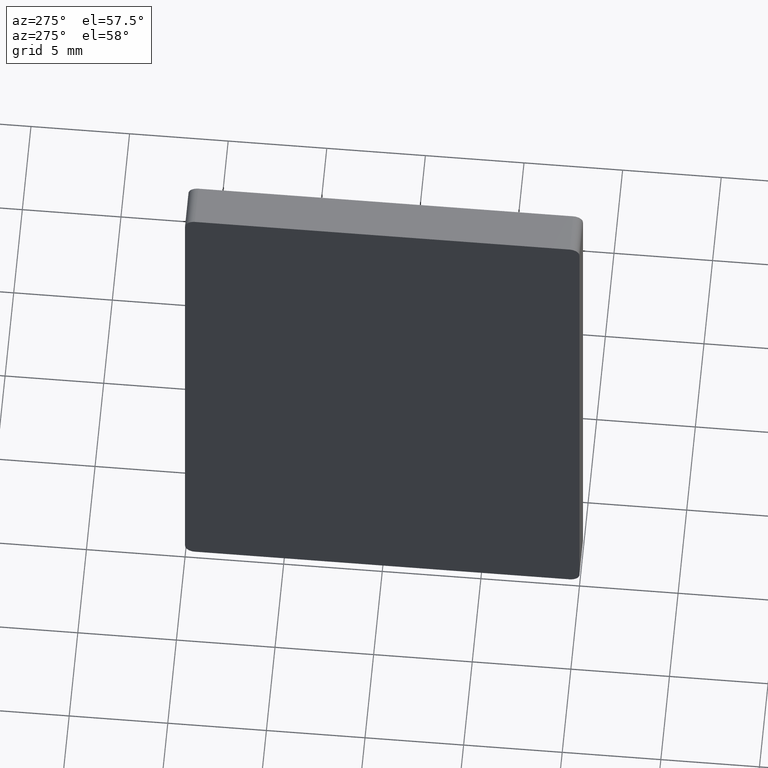
[diagram: clean part render]
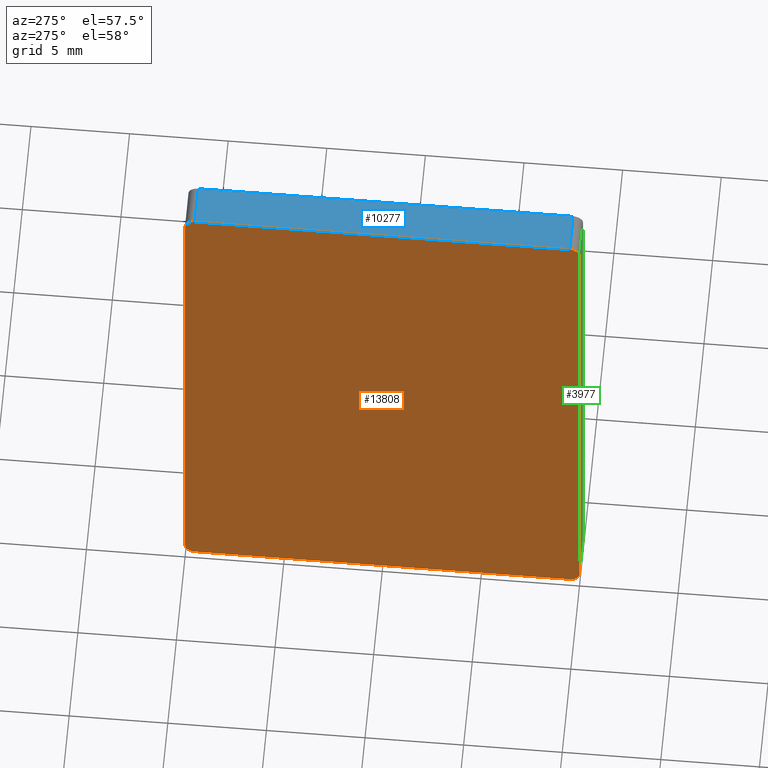
[diagram: same view with three faces highlighted in distinct colors, each labeled with its STEP entity id]
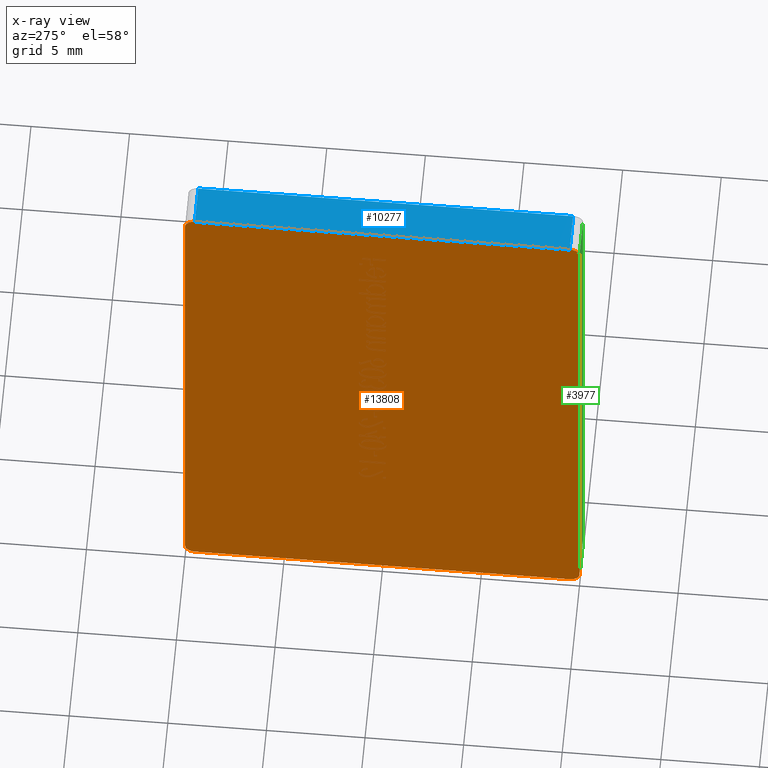
[diagram: x-ray of the same camera — body ghosted, the three highlighted faces saturated]
A machine part, auxiliary view with three faces highlighted in distinct colors.
The next image is the same camera in x-ray (body ghosted, the three faces saturated) — at least one of them is partly hidden behind the body in this view.
Their STEP definitions:

[orange] entity #13808 — the highlighted planar face has unit normal (-1, -0, 0).
#50 = LINE ( 'NONE', #14757, #8183 ) ;
#121 = EDGE_CURVE ( 'NONE', #8858, #3459, #12372, .T. ) ;
#184 = EDGE_CURVE ( 'NONE', #9326, #10818, #12916, .T. ) ;
#900 = AXIS2_PLACEMENT_3D ( 'NONE', #4019, #14399, #5224 ) ;
#934 = LINE ( 'NONE', #14873, #12869 ) ;
#1331 = LINE ( 'NONE', #8719, #1891 ) ;
#1506 = PLANE ( 'NONE',  #5491 ) ;
#1606 = DIRECTION ( 'NONE',  ( 1.000000000000000000, 0.000000000000000000, -0.000000000000000000 ) ) ;
#1618 = DIRECTION ( 'NONE',  ( 1.000000000000000000, 0.000000000000000000, 0.000000000000000000 ) ) ;
#1819 = ORIENTED_EDGE ( 'NONE', *, *, #7122, .F. ) ;
#1891 = VECTOR ( 'NONE', #13369, 1000.000000000000000 ) ;
#2004 = FACE_OUTER_BOUND ( 'NONE', #12771, .T. ) ;
#2090 = DIRECTION ( 'NONE',  ( 0.000000000000000000, 1.000000000000000000, 0.000000000000000000 ) ) ;
#2695 = CARTESIAN_POINT ( 'NONE',  ( 0.000000000000000000, 0.5000000000000000000, -0.5000000000000000000 ) ) ;
#2892 = DIRECTION ( 'NONE',  ( 0.000000000000000000, 0.000000000000000000, -1.000000000000000000 ) ) ;
#2953 = CARTESIAN_POINT ( 'NONE',  ( 0.000000000000000000, 0.5000000000000035527, 0.000000000000000000 ) ) ;
#3459 = VERTEX_POINT ( 'NONE', #3669 ) ;
#3669 = CARTESIAN_POINT ( 'NONE',  ( 0.000000000000000000, 20.00000000000000000, -0.5000000000000035527 ) ) ;
#3705 = DIRECTION ( 'NONE',  ( -1.000000000000000000, -0.000000000000000000, 0.000000000000000000 ) ) ;
#3739 = VERTEX_POINT ( 'NONE', #9151 ) ;
#3916 = ORIENTED_EDGE ( 'NONE', *, *, #9479, .F. ) ;
#3995 = CARTESIAN_POINT ( 'NONE',  ( 0.000000000000000000, 0.5000000000000000000, -30.50000000000000000 ) ) ;
#4017 = AXIS2_PLACEMENT_3D ( 'NONE', #4940, #8372, #14223 ) ;
#4019 = CARTESIAN_POINT ( 'NONE',  ( 0.000000000000000000, 0.5000000000000000000, -0.5000000000000000000 ) ) ;
#4458 = DIRECTION ( 'NONE',  ( -0.000000000000000000, -1.000000000000000000, -0.000000000000000000 ) ) ;
#4720 = VERTEX_POINT ( 'NONE', #2953 ) ;
#4940 = CARTESIAN_POINT ( 'NONE',  ( 0.000000000000000000, 19.50000000000000000, -0.5000000000000000000 ) ) ;
#5061 = DIRECTION ( 'NONE',  ( 0.000000000000000000, 0.000000000000000000, 1.000000000000000000 ) ) ;
#5082 = ORIENTED_EDGE ( 'NONE', *, *, #10955, .F. ) ;
#5100 = CARTESIAN_POINT ( 'NONE',  ( 0.000000000000000000, 20.00000000000000000, -30.49999999999999645 ) ) ;
#5224 = DIRECTION ( 'NONE',  ( 0.000000000000000000, 0.000000000000000000, 1.000000000000000000 ) ) ;
#5491 = AXIS2_PLACEMENT_3D ( 'NONE', #2695, #3705, #6076 ) ;
#5912 = VERTEX_POINT ( 'NONE', #14353 ) ;
#6076 = DIRECTION ( 'NONE',  ( 0.000000000000000000, 0.000000000000000000, 1.000000000000000000 ) ) ;
#6552 = CARTESIAN_POINT ( 'NONE',  ( 0.000000000000000000, 0.5000000000000035527, -31.00000000000000000 ) ) ;
#6763 = EDGE_CURVE ( 'NONE', #3459, #5912, #12406, .T. ) ;
#6952 = CARTESIAN_POINT ( 'NONE',  ( 0.000000000000000000, 0.000000000000000000, -30.49999999999999645 ) ) ;
#7098 = CARTESIAN_POINT ( 'NONE',  ( 0.000000000000000000, 0.000000000000000000, -0.5000000000000035527 ) ) ;
#7122 = EDGE_CURVE ( 'NONE', #4720, #13143, #8063, .T. ) ;
#7475 = DIRECTION ( 'NONE',  ( -0.000000000000000000, -0.000000000000000000, 1.000000000000000000 ) ) ;
#7478 = EDGE_CURVE ( 'NONE', #3739, #8858, #11489, .T. ) ;
#8063 = CIRCLE ( 'NONE', #900, 0.5000000000000000000 ) ;
#8183 = VECTOR ( 'NONE', #2090, 1000.000000000000000 ) ;
#8372 = DIRECTION ( 'NONE',  ( 1.000000000000000000, 0.000000000000000000, 0.000000000000000000 ) ) ;
#8424 = ORIENTED_EDGE ( 'NONE', *, *, #6763, .F. ) ;
#8719 = CARTESIAN_POINT ( 'NONE',  ( 0.000000000000000000, 0.000000000000000000, -0.5000000000000035527 ) ) ;
#8858 = VERTEX_POINT ( 'NONE', #5100 ) ;
#8962 = ORIENTED_EDGE ( 'NONE', *, *, #184, .F. ) ;
#9074 = ORIENTED_EDGE ( 'NONE', *, *, #121, .F. ) ;
#9151 = CARTESIAN_POINT ( 'NONE',  ( 0.000000000000000000, 19.49999999999999645, -31.00000000000000000 ) ) ;
#9326 = VERTEX_POINT ( 'NONE', #6952 ) ;
#9479 = EDGE_CURVE ( 'NONE', #13143, #9326, #1331, .T. ) ;
#9501 = AXIS2_PLACEMENT_3D ( 'NONE', #3995, #1606, #5061 ) ;
#10818 = VERTEX_POINT ( 'NONE', #6552 ) ;
#10827 = CARTESIAN_POINT ( 'NONE',  ( 0.000000000000000000, 19.50000000000000000, -30.50000000000000000 ) ) ;
#10955 = EDGE_CURVE ( 'NONE', #10818, #3739, #50, .T. ) ;
#11489 = CIRCLE ( 'NONE', #14264, 0.5000000000000004441 ) ;
#11819 = CARTESIAN_POINT ( 'NONE',  ( 0.000000000000000000, 20.00000000000000000, -0.5000000000000035527 ) ) ;
#12361 = ORIENTED_EDGE ( 'NONE', *, *, #14520, .F. ) ;
#12372 = LINE ( 'NONE', #11819, #13637 ) ;
#12384 = ORIENTED_EDGE ( 'NONE', *, *, #7478, .F. ) ;
#12406 = CIRCLE ( 'NONE', #4017, 0.5000000000000002220 ) ;
#12771 = EDGE_LOOP ( 'NONE', ( #1819, #12361, #8424, #9074, #12384, #5082, #8962, #3916 ) ) ;
#12869 = VECTOR ( 'NONE', #4458, 1000.000000000000000 ) ;
#12916 = CIRCLE ( 'NONE', #9501, 0.5000000000000004441 ) ;
#13143 = VERTEX_POINT ( 'NONE', #7098 ) ;
#13369 = DIRECTION ( 'NONE',  ( 0.000000000000000000, 0.000000000000000000, -1.000000000000000000 ) ) ;
#13637 = VECTOR ( 'NONE', #7475, 1000.000000000000000 ) ;
#13808 = ADVANCED_FACE ( 'NONE', ( #2004 ), #1506, .T. ) ;
#14223 = DIRECTION ( 'NONE',  ( 0.000000000000000000, 0.000000000000000000, -1.000000000000000000 ) ) ;
#14264 = AXIS2_PLACEMENT_3D ( 'NONE', #10827, #1618, #2892 ) ;
#14353 = CARTESIAN_POINT ( 'NONE',  ( 0.000000000000000000, 19.49999999999999645, 2.168404344971008868E-16 ) ) ;
#14399 = DIRECTION ( 'NONE',  ( 1.000000000000000000, 0.000000000000000000, -0.000000000000000000 ) ) ;
#14520 = EDGE_CURVE ( 'NONE', #5912, #4720, #934, .T. ) ;
#14757 = CARTESIAN_POINT ( 'NONE',  ( 0.000000000000000000, 0.5000000000000035527, -31.00000000000000000 ) ) ;
#14873 = CARTESIAN_POINT ( 'NONE',  ( 0.000000000000000000, 0.5000000000000035527, 0.000000000000000000 ) ) ;

[blue] entity #10277 — the highlighted planar face has unit normal (0, 0, -1).
#117 = DIRECTION ( 'NONE',  ( -0.000000000000000000, -1.000000000000000000, -0.000000000000000000 ) ) ;
#138 = VECTOR ( 'NONE', #1469, 1000.000000000000000 ) ;
#305 = DIRECTION ( 'NONE',  ( -1.000000000000000000, 0.000000000000000000, -0.000000000000000000 ) ) ;
#534 = FACE_OUTER_BOUND ( 'NONE', #5183, .T. ) ;
#934 = LINE ( 'NONE', #14873, #12869 ) ;
#1458 = DIRECTION ( 'NONE',  ( 0.000000000000000000, 0.000000000000000000, -1.000000000000000000 ) ) ;
#1469 = DIRECTION ( 'NONE',  ( -1.000000000000000000, -0.000000000000000000, -0.000000000000000000 ) ) ;
#1821 = VERTEX_POINT ( 'NONE', #2603 ) ;
#2336 = CARTESIAN_POINT ( 'NONE',  ( 2.000000000000000000, 0.5000000000000035527, 0.000000000000000000 ) ) ;
#2603 = CARTESIAN_POINT ( 'NONE',  ( 2.000000000000000000, 0.5000000000000035527, 0.000000000000000000 ) ) ;
#2953 = CARTESIAN_POINT ( 'NONE',  ( 0.000000000000000000, 0.5000000000000035527, 0.000000000000000000 ) ) ;
#3105 = VECTOR ( 'NONE', #117, 1000.000000000000000 ) ;
#4313 = LINE ( 'NONE', #4819, #138 ) ;
#4458 = DIRECTION ( 'NONE',  ( -0.000000000000000000, -1.000000000000000000, -0.000000000000000000 ) ) ;
#4720 = VERTEX_POINT ( 'NONE', #2953 ) ;
#4819 = CARTESIAN_POINT ( 'NONE',  ( 2.000000000000000000, 19.49999999999999645, 2.168404344971008868E-16 ) ) ;
#4854 = VERTEX_POINT ( 'NONE', #10073 ) ;
#4910 = PLANE ( 'NONE',  #12920 ) ;
#5134 = EDGE_CURVE ( 'NONE', #4854, #5912, #4313, .T. ) ;
#5183 = EDGE_LOOP ( 'NONE', ( #12639, #5884, #14380, #11372 ) ) ;
#5884 = ORIENTED_EDGE ( 'NONE', *, *, #6937, .F. ) ;
#5905 = VECTOR ( 'NONE', #12346, 1000.000000000000000 ) ;
#5912 = VERTEX_POINT ( 'NONE', #14353 ) ;
#6937 = EDGE_CURVE ( 'NONE', #1821, #4720, #14574, .T. ) ;
#10073 = CARTESIAN_POINT ( 'NONE',  ( 2.000000000000000000, 19.49999999999999645, 2.168404344971008868E-16 ) ) ;
#10277 = ADVANCED_FACE ( 'NONE', ( #534 ), #4910, .F. ) ;
#10689 = CARTESIAN_POINT ( 'NONE',  ( 2.000000000000000000, 0.5000000000000035527, 0.000000000000000000 ) ) ;
#11372 = ORIENTED_EDGE ( 'NONE', *, *, #5134, .T. ) ;
#12346 = DIRECTION ( 'NONE',  ( -1.000000000000000000, -0.000000000000000000, -0.000000000000000000 ) ) ;
#12639 = ORIENTED_EDGE ( 'NONE', *, *, #14520, .T. ) ;
#12869 = VECTOR ( 'NONE', #4458, 1000.000000000000000 ) ;
#12920 = AXIS2_PLACEMENT_3D ( 'NONE', #13037, #1458, #305 ) ;
#13037 = CARTESIAN_POINT ( 'NONE',  ( 2.000000000000000000, 0.5000000000000035527, 0.000000000000000000 ) ) ;
#13173 = EDGE_CURVE ( 'NONE', #4854, #1821, #14297, .T. ) ;
#14297 = LINE ( 'NONE', #10689, #3105 ) ;
#14353 = CARTESIAN_POINT ( 'NONE',  ( 0.000000000000000000, 19.49999999999999645, 2.168404344971008868E-16 ) ) ;
#14380 = ORIENTED_EDGE ( 'NONE', *, *, #13173, .F. ) ;
#14520 = EDGE_CURVE ( 'NONE', #5912, #4720, #934, .T. ) ;
#14574 = LINE ( 'NONE', #2336, #5905 ) ;
#14873 = CARTESIAN_POINT ( 'NONE',  ( 0.000000000000000000, 0.5000000000000035527, 0.000000000000000000 ) ) ;

[green] entity #3977 — the highlighted planar face has unit normal (-0, 1, 0).
#272 = ORIENTED_EDGE ( 'NONE', *, *, #14665, .T. ) ;
#1016 = LINE ( 'NONE', #1677, #9905 ) ;
#1272 = AXIS2_PLACEMENT_3D ( 'NONE', #14932, #5634, #2184 ) ;
#1331 = LINE ( 'NONE', #8719, #1891 ) ;
#1677 = CARTESIAN_POINT ( 'NONE',  ( 2.000000000000000000, 0.000000000000000000, -0.5000000000000035527 ) ) ;
#1891 = VECTOR ( 'NONE', #13369, 1000.000000000000000 ) ;
#2184 = DIRECTION ( 'NONE',  ( 0.000000000000000000, -0.000000000000000000, 1.000000000000000000 ) ) ;
#3008 = EDGE_CURVE ( 'NONE', #8235, #9326, #4040, .T. ) ;
#3977 = ADVANCED_FACE ( 'NONE', ( #6139 ), #6879, .F. ) ;
#4040 = LINE ( 'NONE', #11142, #13772 ) ;
#4926 = LINE ( 'NONE', #5062, #8356 ) ;
#5062 = CARTESIAN_POINT ( 'NONE',  ( 2.000000000000000000, 0.000000000000000000, -0.5000000000000035527 ) ) ;
#5324 = DIRECTION ( 'NONE',  ( -1.000000000000000000, -0.000000000000000000, -0.000000000000000000 ) ) ;
#5634 = DIRECTION ( 'NONE',  ( -0.000000000000000000, 1.000000000000000000, 0.000000000000000000 ) ) ;
#5763 = ORIENTED_EDGE ( 'NONE', *, *, #9479, .T. ) ;
#5830 = CARTESIAN_POINT ( 'NONE',  ( 2.000000000000000000, 0.000000000000000000, -30.49999999999999645 ) ) ;
#6139 = FACE_OUTER_BOUND ( 'NONE', #12984, .T. ) ;
#6879 = PLANE ( 'NONE',  #1272 ) ;
#6952 = CARTESIAN_POINT ( 'NONE',  ( 0.000000000000000000, 0.000000000000000000, -30.49999999999999645 ) ) ;
#7098 = CARTESIAN_POINT ( 'NONE',  ( 0.000000000000000000, 0.000000000000000000, -0.5000000000000035527 ) ) ;
#7101 = EDGE_CURVE ( 'NONE', #7793, #8235, #1016, .T. ) ;
#7793 = VERTEX_POINT ( 'NONE', #11513 ) ;
#8235 = VERTEX_POINT ( 'NONE', #5830 ) ;
#8356 = VECTOR ( 'NONE', #13133, 1000.000000000000000 ) ;
#8609 = ORIENTED_EDGE ( 'NONE', *, *, #3008, .F. ) ;
#8719 = CARTESIAN_POINT ( 'NONE',  ( 0.000000000000000000, 0.000000000000000000, -0.5000000000000035527 ) ) ;
#9326 = VERTEX_POINT ( 'NONE', #6952 ) ;
#9479 = EDGE_CURVE ( 'NONE', #13143, #9326, #1331, .T. ) ;
#9784 = DIRECTION ( 'NONE',  ( 0.000000000000000000, 0.000000000000000000, -1.000000000000000000 ) ) ;
#9905 = VECTOR ( 'NONE', #9784, 1000.000000000000000 ) ;
#11142 = CARTESIAN_POINT ( 'NONE',  ( 2.000000000000000000, 0.000000000000000000, -30.49999999999999645 ) ) ;
#11513 = CARTESIAN_POINT ( 'NONE',  ( 2.000000000000000000, 0.000000000000000000, -0.5000000000000035527 ) ) ;
#12047 = ORIENTED_EDGE ( 'NONE', *, *, #7101, .F. ) ;
#12984 = EDGE_LOOP ( 'NONE', ( #5763, #8609, #12047, #272 ) ) ;
#13133 = DIRECTION ( 'NONE',  ( -1.000000000000000000, -0.000000000000000000, -0.000000000000000000 ) ) ;
#13143 = VERTEX_POINT ( 'NONE', #7098 ) ;
#13369 = DIRECTION ( 'NONE',  ( 0.000000000000000000, 0.000000000000000000, -1.000000000000000000 ) ) ;
#13772 = VECTOR ( 'NONE', #5324, 1000.000000000000000 ) ;
#14665 = EDGE_CURVE ( 'NONE', #7793, #13143, #4926, .T. ) ;
#14932 = CARTESIAN_POINT ( 'NONE',  ( 2.000000000000000000, 0.000000000000000000, -0.5000000000000035527 ) ) ;